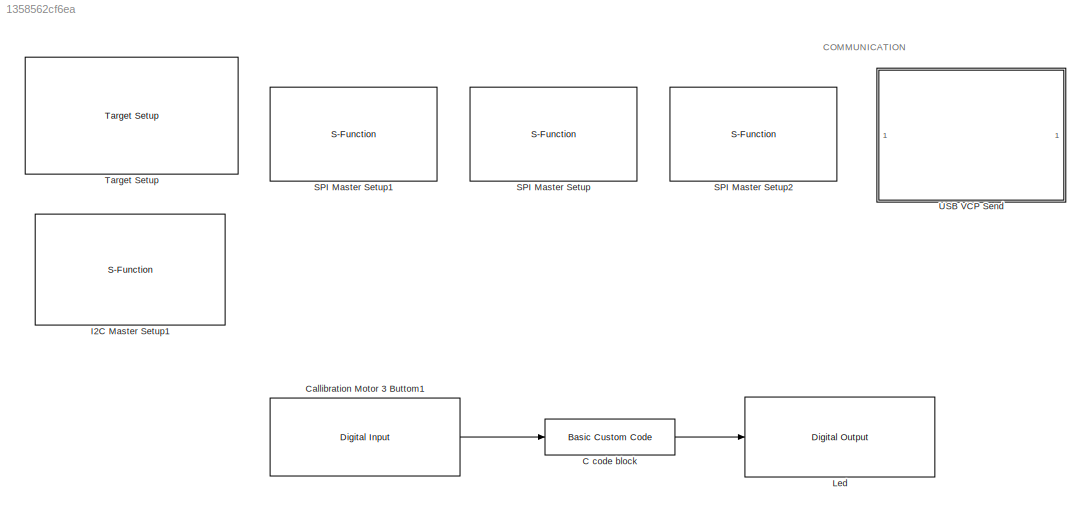
MODEL slx_1358562cf6ea
KIND model
CONFIG AbsTol = auto
CONFIG EnableMultiTasking = off
CONFIG FixedStep = auto
CONFIG MaxStep = auto
CONFIG MinStep = auto
CONFIG PreLoadFcn = waijung.modelPreload; % Required for working with Waijung Blockset. Do not remove.
CONFIG RelTol = 1e-3
CONFIG SampleTimeConstraint = Unconstrained
CONFIG Solver = FixedStepAuto
CONFIG SolverName = FixedStepAuto
CONFIG StartTime = 0.0
CONFIG StopTime = 10.0
BLOCK [Reference] C code block  REF=waijung_customcode/Basic Custom Code
  Ports = [1, 1]
  SourceBlock = waijung_customcode/Basic Custom Code
  SourceType = waijung_basic_customcode
BLOCK [Reference] Callibration Motor 3 Buttom1  REF=stm32f4_io_lib/Digital Input
  Ports = [0, 1]
  SourceBlock = stm32f4_io_lib/Digital Input
  SourceType = stm32f4_digital_input
BLOCK [S-Function] I2C Master Setup1
  EnableBusSupport = off
  FunctionName = stm32f4_i2c
  Parameters = configuration,module,transfer,clkspeed,timeout,sdapin,sclpin,writecount,readcount,inputtypearray,outputtypearray,confstr,sampletime,sampletimestr,blockid
  Ports = []
  SFcnIsStateOwnerBlock = off
  SFunctionDeploymentMode = off
BLOCK [Reference] Led  REF=stm32f4_io_lib/Digital Output
  Ports = [1]
  SourceBlock = stm32f4_io_lib/Digital Output
  SourceType = stm32f4_digital_output
BLOCK [S-Function] SPI Master Setup
  EnableBusSupport = off
  FunctionName = stm32f4_spimaster
  Parameters = mode,configuration,module,datacount,inputtypearray,outputtypearray,confstr,sampletime,sampletimestr,blockid
  Ports = []
  SFcnIsStateOwnerBlock = off
  SFunctionDeploymentMode = off
BLOCK [S-Function] SPI Master Setup1
  EnableBusSupport = off
  FunctionName = stm32f4_spimaster
  Parameters = mode,configuration,module,datacount,inputtypearray,outputtypearray,confstr,sampletime,sampletimestr,blockid
  Ports = []
  SFcnIsStateOwnerBlock = off
  SFunctionDeploymentMode = off
BLOCK [S-Function] SPI Master Setup2
  EnableBusSupport = off
  FunctionName = stm32f4_spimaster
  Parameters = mode,configuration,module,datacount,inputtypearray,outputtypearray,confstr,sampletime,sampletimestr,blockid
  Ports = []
  SFcnIsStateOwnerBlock = off
  SFunctionDeploymentMode = off
BLOCK [Reference] Target Setup  REF=stm32f4_device_config_lib/Target Setup
  Ports = []
  Priority = 100
  SourceBlock = stm32f4_device_config_lib/Target Setup
  SourceType = stm32f4_target_setup
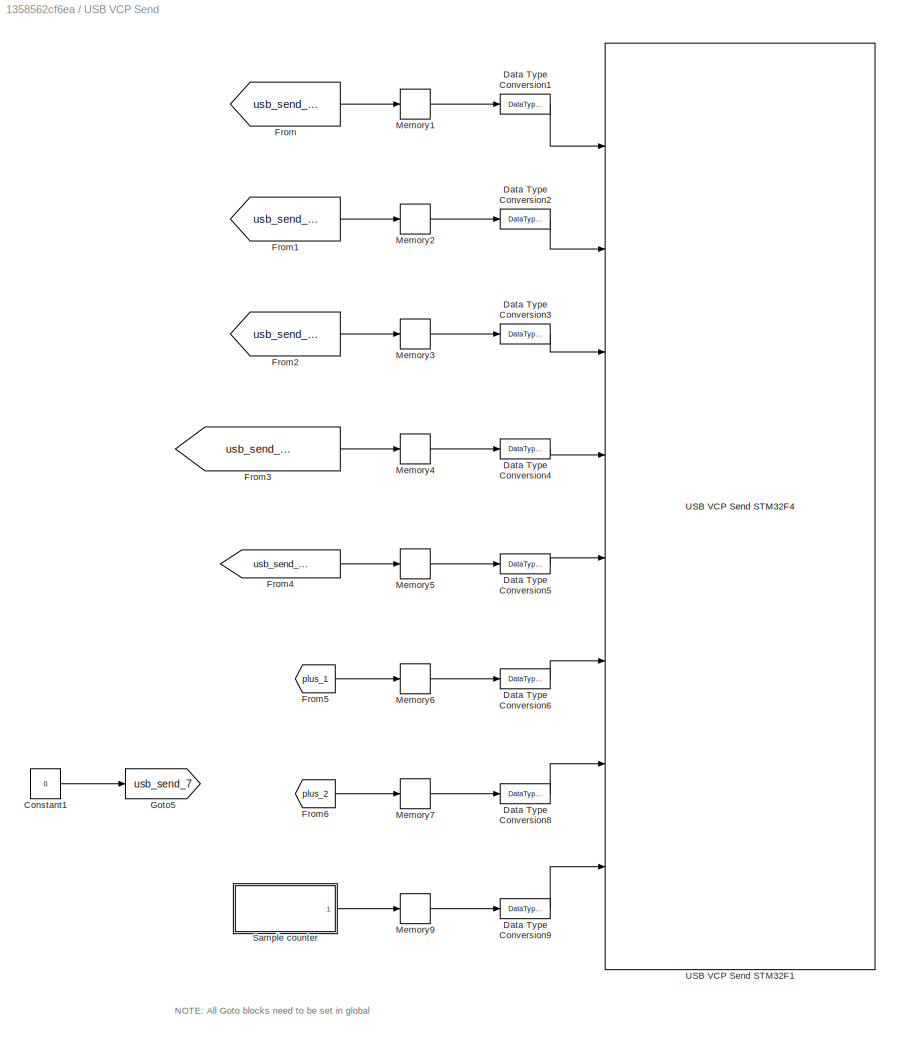
BLOCK [SubSystem] USB VCP Send
  Ports = []
  RequestExecContextInheritance = off
  Variant = off
BLOCK [Constant] USB VCP Send/Constant1
  Value = 0
BLOCK [DataTypeConversion] USB VCP Send/Data Type Conversion1
  RndMeth = Floor
  SaturateOnIntegerOverflow = off
BLOCK [DataTypeConversion] USB VCP Send/Data Type Conversion2
  RndMeth = Floor
  SaturateOnIntegerOverflow = off
BLOCK [DataTypeConversion] USB VCP Send/Data Type Conversion3
  RndMeth = Floor
  SaturateOnIntegerOverflow = off
BLOCK [DataTypeConversion] USB VCP Send/Data Type Conversion4
  RndMeth = Floor
  SaturateOnIntegerOverflow = off
BLOCK [DataTypeConversion] USB VCP Send/Data Type Conversion5
  RndMeth = Floor
  SaturateOnIntegerOverflow = off
BLOCK [DataTypeConversion] USB VCP Send/Data Type Conversion6
  RndMeth = Floor
  SaturateOnIntegerOverflow = off
BLOCK [DataTypeConversion] USB VCP Send/Data Type Conversion8
  RndMeth = Floor
  SaturateOnIntegerOverflow = off
BLOCK [DataTypeConversion] USB VCP Send/Data Type Conversion9
  RndMeth = Floor
  SaturateOnIntegerOverflow = off
BLOCK [From] USB VCP Send/From
  GotoTag = usb_send_a_x
BLOCK [From] USB VCP Send/From1
  GotoTag = usb_send_a_y
BLOCK [From] USB VCP Send/From2
  GotoTag = usb_send_w_z
BLOCK [From] USB VCP Send/From3
  GotoTag = usb_send_cube_angle
BLOCK [From] USB VCP Send/From4
  GotoTag = usb_send_ref_cal
BLOCK [From] USB VCP Send/From5
  GotoTag = plus_1
BLOCK [From] USB VCP Send/From6
  GotoTag = plus_2
BLOCK [Goto] USB VCP Send/Goto5
  GotoTag = usb_send_7
  TagVisibility = global
BLOCK [Memory] USB VCP Send/Memory1
  InheritSampleTime = on
BLOCK [Memory] USB VCP Send/Memory2
  InheritSampleTime = on
BLOCK [Memory] USB VCP Send/Memory3
  InheritSampleTime = on
BLOCK [Memory] USB VCP Send/Memory4
  InheritSampleTime = on
BLOCK [Memory] USB VCP Send/Memory5
  InheritSampleTime = on
BLOCK [Memory] USB VCP Send/Memory6
  InheritSampleTime = on
BLOCK [Memory] USB VCP Send/Memory7
  InheritSampleTime = on
BLOCK [Memory] USB VCP Send/Memory9
  InheritSampleTime = on
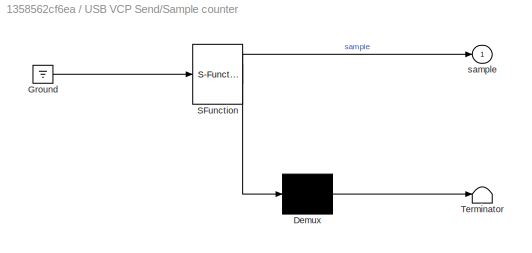
BLOCK [SubSystem] USB VCP Send/Sample counter
  ErrorFcn = Stateflow.Translate.translate
  PermitHierarchicalResolution = ExplicitOnly
  Ports = [0, 1]
  RequestExecContextInheritance = off
  SFBlockType = MATLAB Function
  TreatAsAtomicUnit = on
  Variant = off
BLOCK [Demux] USB VCP Send/Sample counter/ Demux 
  Outputs = 1
  Ports = [1, 1]
BLOCK [Ground] USB VCP Send/Sample counter/ Ground 
BLOCK [S-Function] USB VCP Send/Sample counter/ SFunction 
  EnableBusSupport = on
  FunctionName = sf_sfun
  PortCounts = [1 2]
  Ports = [1, 2]
  SFcnIsStateOwnerBlock = off
  SFunctionDeploymentMode = off
  Tag = Stateflow S-Function Led_Custom_code_block 1
BLOCK [Terminator] USB VCP Send/Sample counter/ Terminator 
BLOCK [Outport] USB VCP Send/Sample counter/sample
  IconDisplay = Port number
BLOCK [Reference] USB VCP Send/USB VCP Send STM32F1  REF=BC_USB/USB VCP Send STM32F4
  Ports = [8]
  SourceBlock = BC_USB/USB VCP Send STM32F4
  SourceType = USB_VCP_SEND_STM32F4 High Speed Large Data Packet Size
ANNOTATION (root): COMMUNICATION
ANNOTATION USB VCP Send: NOTE: All Goto blocks need to be set in global
LINE C code block:1 -> Led:1
LINE Callibration Motor 3 Buttom1:1 -> C code block:1
LINE USB VCP Send/Constant1:1 -> USB VCP Send/Goto5:1
LINE USB VCP Send/Data Type Conversion1:1 -> USB VCP Send/USB VCP Send STM32F1:1
LINE USB VCP Send/Data Type Conversion2:1 -> USB VCP Send/USB VCP Send STM32F1:2
LINE USB VCP Send/Data Type Conversion3:1 -> USB VCP Send/USB VCP Send STM32F1:3
LINE USB VCP Send/Data Type Conversion4:1 -> USB VCP Send/USB VCP Send STM32F1:4
LINE USB VCP Send/Data Type Conversion5:1 -> USB VCP Send/USB VCP Send STM32F1:5
LINE USB VCP Send/Data Type Conversion6:1 -> USB VCP Send/USB VCP Send STM32F1:6
LINE USB VCP Send/Data Type Conversion8:1 -> USB VCP Send/USB VCP Send STM32F1:7
LINE USB VCP Send/Data Type Conversion9:1 -> USB VCP Send/USB VCP Send STM32F1:8
LINE USB VCP Send/From1:1 -> USB VCP Send/Memory2:1
LINE USB VCP Send/From2:1 -> USB VCP Send/Memory3:1
LINE USB VCP Send/From3:1 -> USB VCP Send/Memory4:1
LINE USB VCP Send/From4:1 -> USB VCP Send/Memory5:1
LINE USB VCP Send/From5:1 -> USB VCP Send/Memory6:1
LINE USB VCP Send/From6:1 -> USB VCP Send/Memory7:1
LINE USB VCP Send/From:1 -> USB VCP Send/Memory1:1
LINE USB VCP Send/Memory1:1 -> USB VCP Send/Data Type Conversion1:1
LINE USB VCP Send/Memory2:1 -> USB VCP Send/Data Type Conversion2:1
LINE USB VCP Send/Memory3:1 -> USB VCP Send/Data Type Conversion3:1
LINE USB VCP Send/Memory4:1 -> USB VCP Send/Data Type Conversion4:1
LINE USB VCP Send/Memory5:1 -> USB VCP Send/Data Type Conversion5:1
LINE USB VCP Send/Memory6:1 -> USB VCP Send/Data Type Conversion6:1
LINE USB VCP Send/Memory7:1 -> USB VCP Send/Data Type Conversion8:1
LINE USB VCP Send/Memory9:1 -> USB VCP Send/Data Type Conversion9:1
LINE USB VCP Send/Sample counter:1 -> USB VCP Send/Memory9:1
CHART USB VCP Send/Sample counter states=1 transitions=1
  STATE_LABEL 'eML_blk_kernel()'
  STATE_LABEL 'SCRIPT:\nfunction sample = SampleCounter\n%#codegen\n\npersistent sample_count;\n\nif isempty(sample_count)\n    sample_count = 0;\nend\n\nsample_count = sample_count + 1;\n\nsample = sample_count;'
